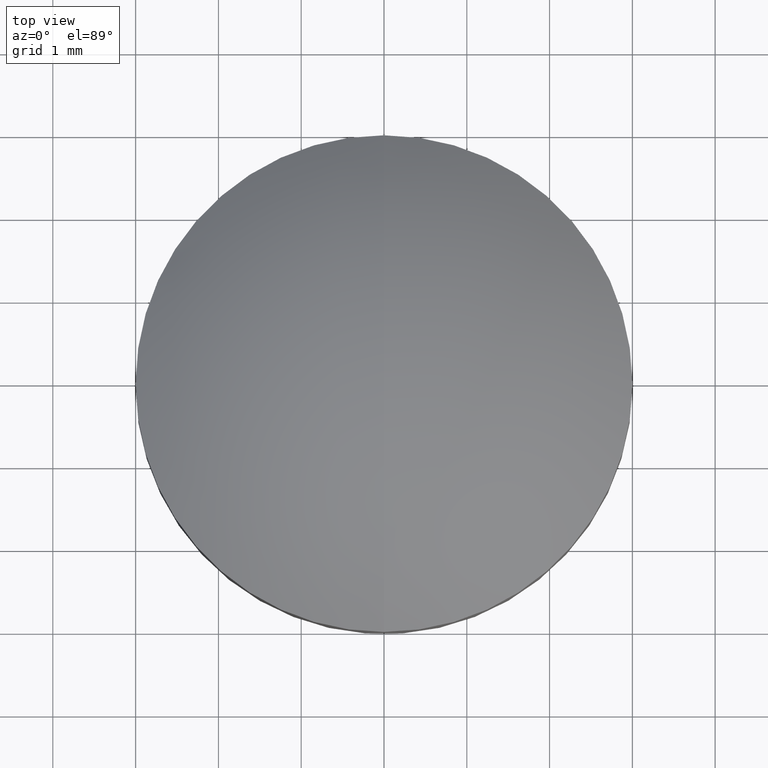
[diagram: clean part render]
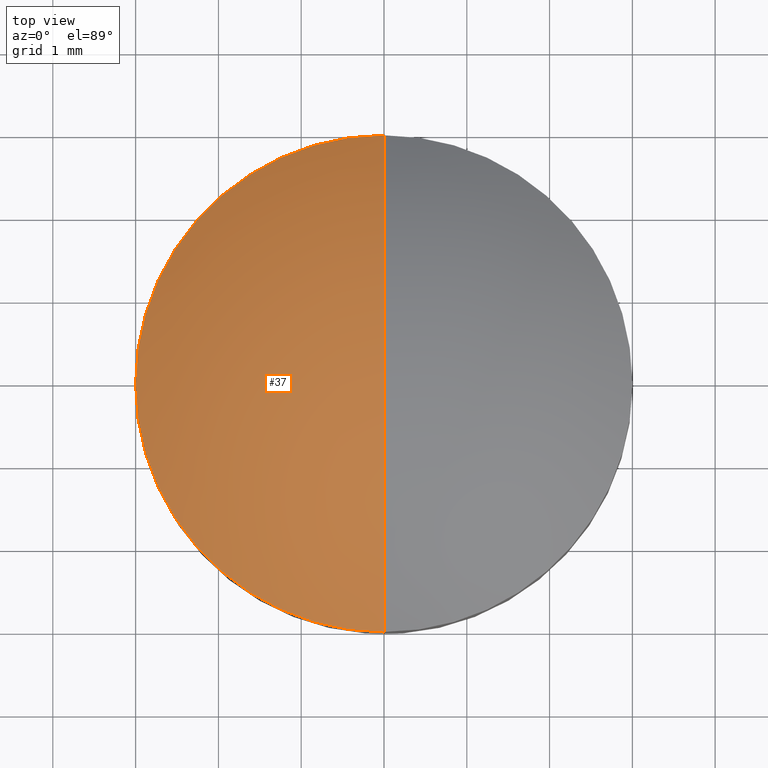
[diagram: same view with one face highlighted and labeled with its STEP entity id]
A machine part, top view. The second image highlights one B-rep face of the part: STEP entity #37.
In plain terms, the highlighted spherical surface has radius 5.15 mm.
Its self-contained STEP definition (entity closure, byte-faithful):
#14 = VERTEX_POINT ( 'NONE', #121 ) ;
#18 = ORIENTED_EDGE ( 'NONE', *, *, #22, .T. ) ;
#22 = EDGE_CURVE ( 'NONE', #36, #14, #171, .T. ) ;
#23 = EDGE_CURVE ( 'NONE', #30, #36, #177, .T. ) ;
#24 = EDGE_CURVE ( 'NONE', #14, #31, #152, .T. ) ;
#29 = ORIENTED_EDGE ( 'NONE', *, *, #23, .T. ) ;
#30 = VERTEX_POINT ( 'NONE', #175 ) ;
#31 = VERTEX_POINT ( 'NONE', #174 ) ;
#33 = EDGE_LOOP ( 'NONE', ( #29, #18, #45, #61 ) ) ;
#36 = VERTEX_POINT ( 'NONE', #161 ) ;
#37 = ADVANCED_FACE ( 'NONE', ( #160 ), #203, .T. ) ;
#45 = ORIENTED_EDGE ( 'NONE', *, *, #24, .T. ) ;
#50 = DIRECTION ( 'NONE',  ( 0.0000000000000000000, 0.0000000000000000000, -1.000000000000000000 ) ) ;
#55 = DIRECTION ( 'NONE',  ( 1.000000000000000000, 0.0000000000000000000, 0.0000000000000000000 ) ) ;
#61 = ORIENTED_EDGE ( 'NONE', *, *, #68, .F. ) ;
#68 = EDGE_CURVE ( 'NONE', #30, #31, #192, .T. ) ;
#121 = CARTESIAN_POINT ( 'NONE',  ( -3.673819061467129300E-016, -2.999999999999998200, 0.2659885331902224200 ) ) ;
#151 = AXIS2_PLACEMENT_3D ( 'NONE', #169, #180, #178 ) ;
#152 = CIRCLE ( 'NONE', #184, 5.149999999999998600 ) ;
#160 = FACE_OUTER_BOUND ( 'NONE', #33, .T. ) ;
#161 = CARTESIAN_POINT ( 'NONE',  ( -2.999999999999999100, 3.673819061467130800E-016, 0.2659885331902219800 ) ) ;
#169 = CARTESIAN_POINT ( 'NONE',  ( 0.0000000000000000000, 0.0000000000000000000, 0.2659885331902219800 ) ) ;
#170 = DIRECTION ( 'NONE',  ( -1.224606353822377000E-016, -1.000000000000000000, 0.0000000000000000000 ) ) ;
#171 = CIRCLE ( 'NONE', #173, 2.999999999999999100 ) ;
#172 = DIRECTION ( 'NONE',  ( 1.000000000000000000, 0.0000000000000000000, 0.0000000000000000000 ) ) ;
#173 = AXIS2_PLACEMENT_3D ( 'NONE', #181, #179, #172 ) ;
#174 = CARTESIAN_POINT ( 'NONE',  ( 0.0000000000000000000, 3.153361361092620100E-016, 1.230000000000002000 ) ) ;
#175 = CARTESIAN_POINT ( 'NONE',  ( 0.0000000000000000000, 2.999999999999998200, 0.2659885331902224200 ) ) ;
#177 = CIRCLE ( 'NONE', #151, 2.999999999999999100 ) ;
#178 = DIRECTION ( 'NONE',  ( 1.000000000000000000, 0.0000000000000000000, 0.0000000000000000000 ) ) ;
#179 = DIRECTION ( 'NONE',  ( -0.0000000000000000000, -0.0000000000000000000, 1.000000000000000000 ) ) ;
#180 = DIRECTION ( 'NONE',  ( -0.0000000000000000000, -0.0000000000000000000, 1.000000000000000000 ) ) ;
#181 = CARTESIAN_POINT ( 'NONE',  ( 0.0000000000000000000, 0.0000000000000000000, 0.2659885331902219800 ) ) ;
#182 = DIRECTION ( 'NONE',  ( -1.000000000000000000, 1.224606353822377300E-016, 0.0000000000000000000 ) ) ;
#183 = CARTESIAN_POINT ( 'NONE',  ( 0.0000000000000000000, 0.0000000000000000000, -3.919999999999996400 ) ) ;
#184 = AXIS2_PLACEMENT_3D ( 'NONE', #183, #182, #170 ) ;
#189 = CARTESIAN_POINT ( 'NONE',  ( 0.0000000000000000000, 0.0000000000000000000, -3.919999999999996400 ) ) ;
#190 = CARTESIAN_POINT ( 'NONE',  ( 0.0000000000000000000, 0.0000000000000000000, -3.919999999999996400 ) ) ;
#191 = AXIS2_PLACEMENT_3D ( 'NONE', #190, #55, #50 ) ;
#192 = CIRCLE ( 'NONE', #191, 5.149999999999998600 ) ;
#197 = AXIS2_PLACEMENT_3D ( 'NONE', #189, #202, #200 ) ;
#200 = DIRECTION ( 'NONE',  ( 0.0000000000000000000, 1.000000000000000000, 0.0000000000000000000 ) ) ;
#202 = DIRECTION ( 'NONE',  ( -1.000000000000000000, 0.0000000000000000000, 0.0000000000000000000 ) ) ;
#203 = SPHERICAL_SURFACE ( 'NONE', #197, 5.149999999999998600 ) ;